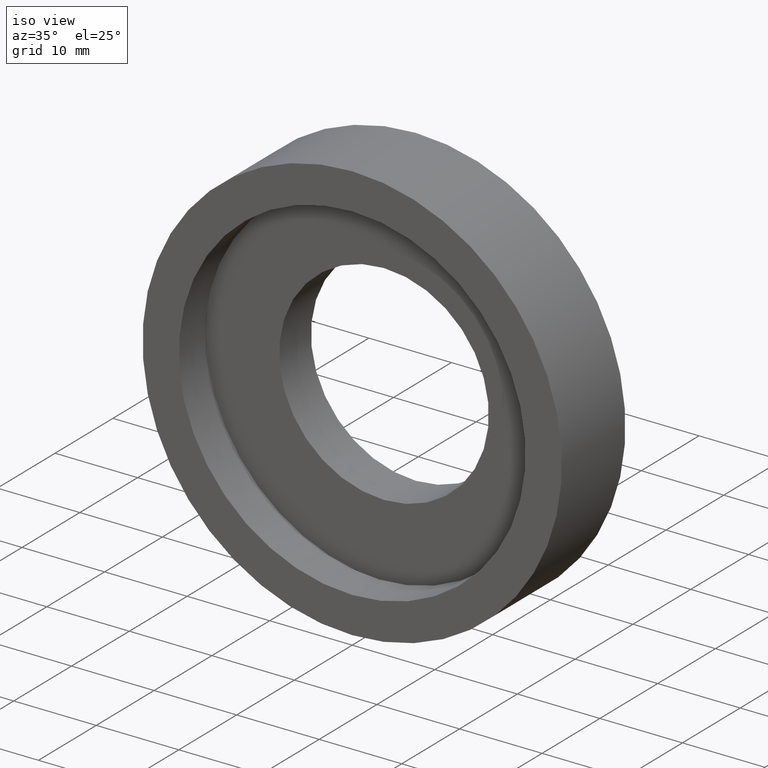
[diagram: clean part render]
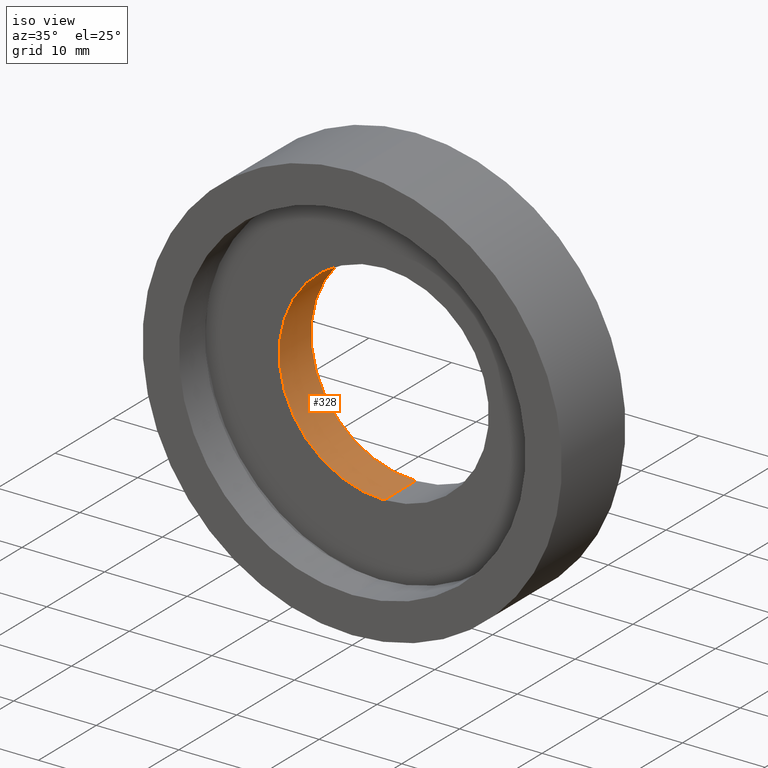
[diagram: same view with one face highlighted and labeled with its STEP entity id]
A machine part, iso view. The second image highlights one B-rep face of the part: STEP entity #328.
In plain terms, the highlighted cylindrical surface (partial cylindrical patch) has radius 12.7 mm, axis along (-0, -1, -0).
Its self-contained STEP definition (entity closure, byte-faithful):
#6 = LINE ( 'NONE', #234, #233 ) ;
#12 = CARTESIAN_POINT ( 'NONE',  ( 1.555301434917138433E-15, 10.99999999999999822, 12.69999999999999929 ) ) ;
#18 = CARTESIAN_POINT ( 'NONE',  ( 0.000000000000000000, 10.99999999999999822, -12.69999999999999929 ) ) ;
#41 = CARTESIAN_POINT ( 'NONE',  ( 0.000000000000000000, 5.499999999999997335, 0.000000000000000000 ) ) ;
#53 = ORIENTED_EDGE ( 'NONE', *, *, #281, .T. ) ;
#85 = CYLINDRICAL_SURFACE ( 'NONE', #246, 12.69999999999999929 ) ;
#104 = DIRECTION ( 'NONE',  ( -0.000000000000000000, -1.000000000000000000, -0.000000000000000000 ) ) ;
#111 = VECTOR ( 'NONE', #104, 1000.000000000000000 ) ;
#112 = CARTESIAN_POINT ( 'NONE',  ( 1.555301434917138433E-15, 0.000000000000000000, 12.69999999999999929 ) ) ;
#120 = CARTESIAN_POINT ( 'NONE',  ( 0.000000000000000000, 0.000000000000000000, 0.000000000000000000 ) ) ;
#123 = ORIENTED_EDGE ( 'NONE', *, *, #216, .T. ) ;
#132 = EDGE_LOOP ( 'NONE', ( #362, #123, #53, #210 ) ) ;
#148 = CIRCLE ( 'NONE', #298, 12.69999999999999929 ) ;
#154 = DIRECTION ( 'NONE',  ( 0.000000000000000000, 0.000000000000000000, -1.000000000000000000 ) ) ;
#155 = VERTEX_POINT ( 'NONE', #352 ) ;
#182 = FACE_OUTER_BOUND ( 'NONE', #132, .T. ) ;
#187 = CIRCLE ( 'NONE', #287, 12.69999999999999929 ) ;
#192 = EDGE_CURVE ( 'NONE', #367, #283, #187, .T. ) ;
#203 = DIRECTION ( 'NONE',  ( 0.000000000000000000, 0.000000000000000000, -1.000000000000000000 ) ) ;
#210 = ORIENTED_EDGE ( 'NONE', *, *, #229, .F. ) ;
#216 = EDGE_CURVE ( 'NONE', #367, #155, #391, .T. ) ;
#228 = DIRECTION ( 'NONE',  ( -0.000000000000000000, -1.000000000000000000, -0.000000000000000000 ) ) ;
#229 = EDGE_CURVE ( 'NONE', #283, #302, #6, .T. ) ;
#231 = DIRECTION ( 'NONE',  ( -0.000000000000000000, -1.000000000000000000, -0.000000000000000000 ) ) ;
#233 = VECTOR ( 'NONE', #228, 1000.000000000000000 ) ;
#234 = CARTESIAN_POINT ( 'NONE',  ( 0.000000000000000000, 0.000000000000000000, -12.69999999999999929 ) ) ;
#238 = DIRECTION ( 'NONE',  ( 0.000000000000000000, 0.000000000000000000, -1.000000000000000000 ) ) ;
#246 = AXIS2_PLACEMENT_3D ( 'NONE', #120, #306, #154 ) ;
#271 = CARTESIAN_POINT ( 'NONE',  ( 0.000000000000000000, 5.499999999999997335, -12.69999999999999929 ) ) ;
#273 = DIRECTION ( 'NONE',  ( -0.000000000000000000, -1.000000000000000000, -0.000000000000000000 ) ) ;
#281 = EDGE_CURVE ( 'NONE', #155, #302, #148, .T. ) ;
#283 = VERTEX_POINT ( 'NONE', #18 ) ;
#287 = AXIS2_PLACEMENT_3D ( 'NONE', #387, #231, #203 ) ;
#298 = AXIS2_PLACEMENT_3D ( 'NONE', #41, #273, #238 ) ;
#302 = VERTEX_POINT ( 'NONE', #271 ) ;
#306 = DIRECTION ( 'NONE',  ( -0.000000000000000000, -1.000000000000000000, -0.000000000000000000 ) ) ;
#328 = ADVANCED_FACE ( 'NONE', ( #182 ), #85, .F. ) ;
#352 = CARTESIAN_POINT ( 'NONE',  ( 1.555301434917138433E-15, 5.499999999999997335, 12.69999999999999929 ) ) ;
#362 = ORIENTED_EDGE ( 'NONE', *, *, #192, .F. ) ;
#367 = VERTEX_POINT ( 'NONE', #12 ) ;
#387 = CARTESIAN_POINT ( 'NONE',  ( 0.000000000000000000, 10.99999999999999822, 0.000000000000000000 ) ) ;
#391 = LINE ( 'NONE', #112, #111 ) ;